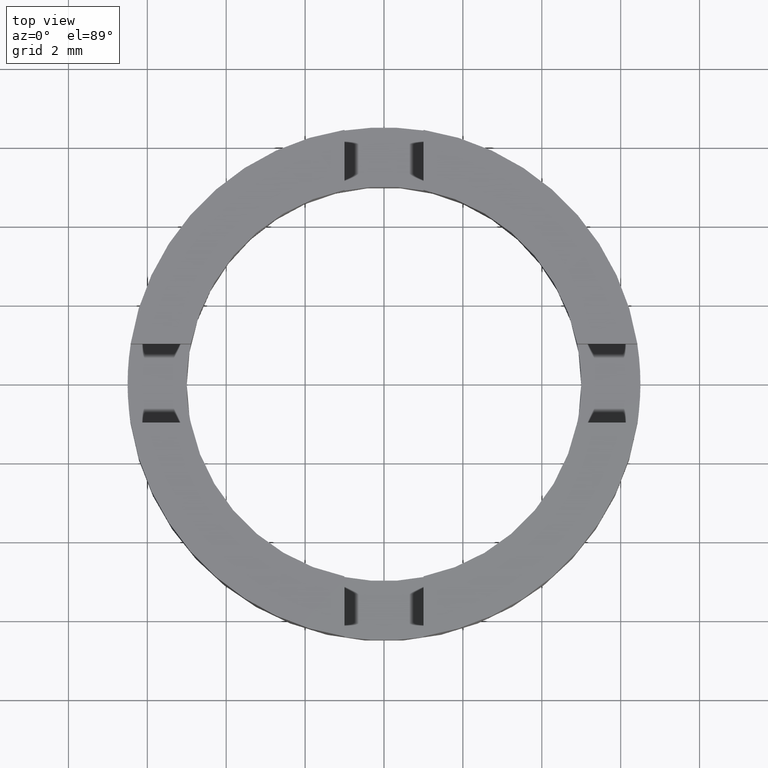
[diagram: clean part render]
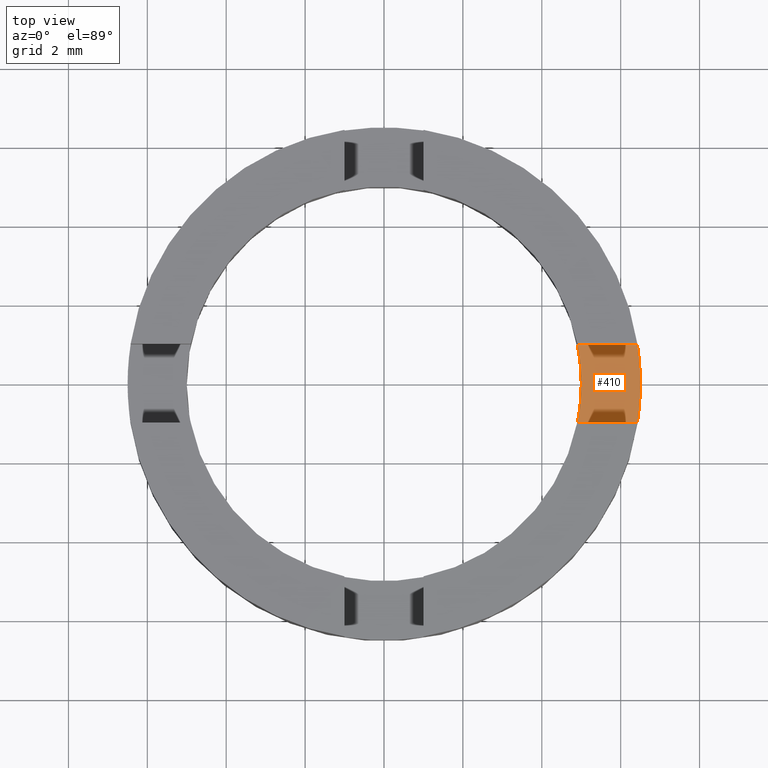
[diagram: same view with one face highlighted and labeled with its STEP entity id]
A machine part, top view. The second image highlights one B-rep face of the part: STEP entity #410.
In plain terms, the highlighted planar face has unit normal (-0, 0, 1).
Its self-contained STEP definition (entity closure, byte-faithful):
#18 = ORIENTED_EDGE ( 'NONE', *, *, #228, .F. ) ;
#47 = DIRECTION ( 'NONE',  ( 0.000000000000000000, -0.000000000000000000, -1.000000000000000000 ) ) ;
#65 = AXIS2_PLACEMENT_3D ( 'NONE', #442, #687, #593 ) ;
#70 = FACE_OUTER_BOUND ( 'NONE', #399, .T. ) ;
#75 = VECTOR ( 'NONE', #497, 1000.000000000000000 ) ;
#80 = ORIENTED_EDGE ( 'NONE', *, *, #271, .T. ) ;
#83 = CARTESIAN_POINT ( 'NONE',  ( -3.736327486719281491E-15, -1.000000000000001110, 1.500000000000000000 ) ) ;
#89 = CIRCLE ( 'NONE', #132, 5.000000000000000000 ) ;
#95 = VERTEX_POINT ( 'NONE', #462 ) ;
#104 = LINE ( 'NONE', #83, #75 ) ;
#116 = LINE ( 'NONE', #209, #333 ) ;
#117 = VERTEX_POINT ( 'NONE', #693 ) ;
#118 = CIRCLE ( 'NONE', #65, 6.500000000000000888 ) ;
#124 = PLANE ( 'NONE',  #589 ) ;
#132 = AXIS2_PLACEMENT_3D ( 'NONE', #445, #47, #612 ) ;
#142 = ORIENTED_EDGE ( 'NONE', *, *, #403, .T. ) ;
#146 = DIRECTION ( 'NONE',  ( -0.000000000000000000, 0.000000000000000000, 1.000000000000000000 ) ) ;
#148 = ORIENTED_EDGE ( 'NONE', *, *, #326, .T. ) ;
#168 = DIRECTION ( 'NONE',  ( 1.000000000000000000, -3.736327486719276758E-15, 0.000000000000000000 ) ) ;
#183 = DIRECTION ( 'NONE',  ( -0.000000000000000000, 0.000000000000000000, 1.000000000000000000 ) ) ;
#185 = VERTEX_POINT ( 'NONE', #515 ) ;
#205 = CARTESIAN_POINT ( 'NONE',  ( 4.898979485566360204, 0.9999999999999806821, 1.500000000000000000 ) ) ;
#209 = CARTESIAN_POINT ( 'NONE',  ( 3.736327486719272814E-15, 0.9999999999999988898, 1.500000000000000000 ) ) ;
#228 = EDGE_CURVE ( 'NONE', #637, #117, #116, .T. ) ;
#243 = EDGE_CURVE ( 'NONE', #408, #117, #371, .T. ) ;
#269 = DIRECTION ( 'NONE',  ( 1.000000000000000000, 0.000000000000000000, 0.000000000000000000 ) ) ;
#271 = EDGE_CURVE ( 'NONE', #95, #185, #89, .T. ) ;
#282 = AXIS2_PLACEMENT_3D ( 'NONE', #366, #146, #269 ) ;
#326 = EDGE_CURVE ( 'NONE', #638, #408, #118, .T. ) ;
#333 = VECTOR ( 'NONE', #168, 1000.000000000000000 ) ;
#366 = CARTESIAN_POINT ( 'NONE',  ( 0.000000000000000000, 0.000000000000000000, 1.500000000000000000 ) ) ;
#371 = CIRCLE ( 'NONE', #282, 6.500000000000000888 ) ;
#399 = EDGE_LOOP ( 'NONE', ( #18, #142, #80, #762, #148, #402 ) ) ;
#402 = ORIENTED_EDGE ( 'NONE', *, *, #243, .T. ) ;
#403 = EDGE_CURVE ( 'NONE', #637, #95, #578, .T. ) ;
#404 = CARTESIAN_POINT ( 'NONE',  ( 6.422616289332561124, -1.000000000000025091, 1.500000000000000000 ) ) ;
#408 = VERTEX_POINT ( 'NONE', #469 ) ;
#410 = ADVANCED_FACE ( 'NONE', ( #70 ), #124, .T. ) ;
#426 = DIRECTION ( 'NONE',  ( 1.000000000000000000, 8.881784197001252323E-15, 0.000000000000000000 ) ) ;
#442 = CARTESIAN_POINT ( 'NONE',  ( 0.000000000000000000, 0.000000000000000000, 1.500000000000000000 ) ) ;
#445 = CARTESIAN_POINT ( 'NONE',  ( 0.000000000000000000, 0.000000000000000000, 1.500000000000000000 ) ) ;
#462 = CARTESIAN_POINT ( 'NONE',  ( 5.000000000000000000, 6.123233995736766282E-16, 1.500000000000000000 ) ) ;
#469 = CARTESIAN_POINT ( 'NONE',  ( 6.500000000000000888, 7.960204194457796463E-16, 1.500000000000000000 ) ) ;
#497 = DIRECTION ( 'NONE',  ( 1.000000000000000000, -3.736327486719276758E-15, 0.000000000000000000 ) ) ;
#506 = EDGE_CURVE ( 'NONE', #185, #638, #104, .T. ) ;
#515 = CARTESIAN_POINT ( 'NONE',  ( 4.898979485566353098, -1.000000000000019318, 1.500000000000000000 ) ) ;
#518 = DIRECTION ( 'NONE',  ( 0.000000000000000000, -0.000000000000000000, -1.000000000000000000 ) ) ;
#561 = DIRECTION ( 'NONE',  ( 1.000000000000000000, 0.000000000000000000, 0.000000000000000000 ) ) ;
#578 = CIRCLE ( 'NONE', #686, 5.000000000000000000 ) ;
#589 = AXIS2_PLACEMENT_3D ( 'NONE', #719, #183, #561 ) ;
#593 = DIRECTION ( 'NONE',  ( 1.000000000000000000, 0.000000000000000000, 0.000000000000000000 ) ) ;
#612 = DIRECTION ( 'NONE',  ( 1.000000000000000000, 0.000000000000000000, 0.000000000000000000 ) ) ;
#637 = VERTEX_POINT ( 'NONE', #205 ) ;
#638 = VERTEX_POINT ( 'NONE', #404 ) ;
#686 = AXIS2_PLACEMENT_3D ( 'NONE', #766, #518, #426 ) ;
#687 = DIRECTION ( 'NONE',  ( -0.000000000000000000, 0.000000000000000000, 1.000000000000000000 ) ) ;
#693 = CARTESIAN_POINT ( 'NONE',  ( 6.422616289332569117, 0.9999999999999749090, 1.500000000000000000 ) ) ;
#719 = CARTESIAN_POINT ( 'NONE',  ( 0.000000000000000000, 0.000000000000000000, 1.500000000000000000 ) ) ;
#762 = ORIENTED_EDGE ( 'NONE', *, *, #506, .T. ) ;
#766 = CARTESIAN_POINT ( 'NONE',  ( 0.000000000000000000, 0.000000000000000000, 1.500000000000000000 ) ) ;